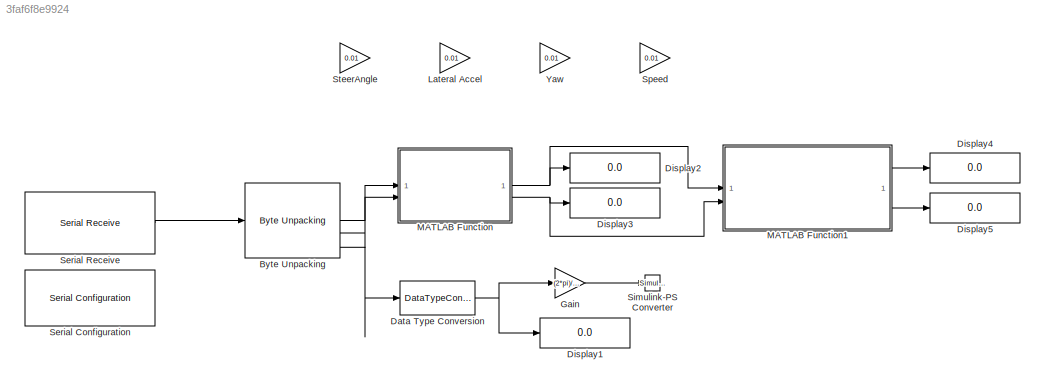
MODEL slx_3faf6f8e9924
KIND model
CONFIG AbsTol = auto
CONFIG EnableMultiTasking = off
CONFIG FixedStep = auto
CONFIG MaxStep = auto
CONFIG MinStep = auto
CONFIG RelTol = 1e-3
CONFIG SampleTimeConstraint = Unconstrained
CONFIG SolverName = VariableStepAuto
CONFIG StartTime = 0.0
CONFIG StopTime = 10.0
BLOCK [Reference] Byte Unpacking  REF=slrealtimeutilitieslib/Byte Unpacking
  SourceBlock = slrealtimeutilitieslib/Byte Unpacking
  SourceType = slreraltimebytepacking
BLOCK [DataTypeConversion] Data Type Conversion
  LockScale = on
  OutDataTypeStr = double
  RndMeth = Floor
  SaturateOnIntegerOverflow = off
BLOCK [Display] Display1
  Decimation = 1
BLOCK [Display] Display2
  Decimation = 1
BLOCK [Display] Display3
  Decimation = 1
BLOCK [Display] Display4
  Decimation = 1
BLOCK [Display] Display5
  Decimation = 1
BLOCK [Gain] Gain
  Gain = (2*pi)/60
BLOCK [Gain] Lateral Accel
  Gain = 0.01
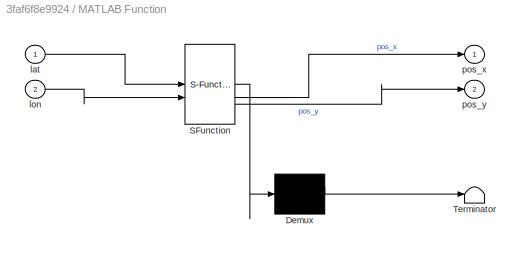
BLOCK [SubSystem] MATLAB Function
  ErrorFcn = Stateflow.Translate.translate
  PermitHierarchicalResolution = ExplicitOnly
  SFBlockType = MATLAB Function
  TreatAsAtomicUnit = on
BLOCK [Demux] MATLAB Function/ Demux 
  Outputs = 1
BLOCK [S-Function] MATLAB Function/ SFunction 
  EnableBusSupport = off
  FunctionName = sf_sfun
  PortCounts = [2 3]
  SFcnIsStateOwnerBlock = off
  SFunctionDeploymentMode = off
  Tag = Stateflow S-Function 2
BLOCK [Terminator] MATLAB Function/ Terminator 
BLOCK [Inport] MATLAB Function/lat
BLOCK [Inport] MATLAB Function/lon
  Port = 2
BLOCK [Outport] MATLAB Function/pos_x
BLOCK [Outport] MATLAB Function/pos_y
  Port = 2
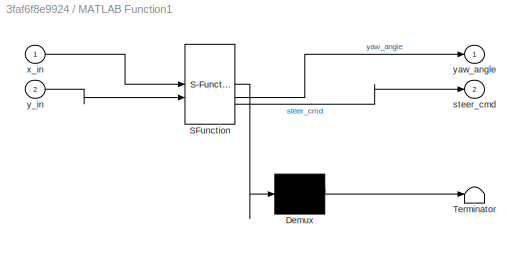
BLOCK [SubSystem] MATLAB Function1
  ErrorFcn = Stateflow.Translate.translate
  PermitHierarchicalResolution = ExplicitOnly
  SFBlockType = MATLAB Function
  TreatAsAtomicUnit = on
BLOCK [Demux] MATLAB Function1/ Demux 
  Outputs = 1
BLOCK [S-Function] MATLAB Function1/ SFunction 
  EnableBusSupport = off
  FunctionName = sf_sfun
  PortCounts = [2 3]
  SFcnIsStateOwnerBlock = off
  SFunctionDeploymentMode = off
  Tag = Stateflow S-Function 1
BLOCK [Terminator] MATLAB Function1/ Terminator 
BLOCK [Outport] MATLAB Function1/steer_cmd
  Port = 2
BLOCK [Inport] MATLAB Function1/x_in
BLOCK [Inport] MATLAB Function1/y_in
  Port = 2
BLOCK [Outport] MATLAB Function1/yaw_angle
BLOCK [Reference] Serial Configuration  REF=instrumentseriallib/Serial Configuration
  LibrarySourceBlock = instrumentlib/Serial Configuration
  Priority = -200000
  SourceBlock = instrumentseriallib/Serial Configuration
  SourceType = system.SerialConfiguration
BLOCK [Reference] Serial Receive  REF=instrumentseriallib/Serial Receive
  LibrarySourceBlock = instrumentlib/Serial Receive
  Priority = 1
  SourceBlock = instrumentseriallib/Serial Receive
  SourceType = system.SerialReceive
BLOCK [Reference] Simulink-PS Converter  REF=nesl_utility/Simulink-PS
Converter
  SourceBlock = nesl_utility/Simulink-PS\nConverter
  SourceType = Simulink-PS\nConverter
BLOCK [Gain] Speed
  Gain = 0.01
BLOCK [Gain] SteerAngle
  Gain = 0.01
BLOCK [Gain] Yaw
  Gain = 0.01
LINE Byte Unpacking:1 -> MATLAB Function:1
LINE Byte Unpacking:2 -> MATLAB Function:2
LINE Byte Unpacking:6 -> Data Type Conversion:1
NET Data Type Conversion:1 -> Display1:1, Gain:1
LINE Gain:1 -> Simulink-PS Converter:1
LINE MATLAB Function1:1 -> Display4:1
LINE MATLAB Function1:2 -> Display5:1
NET MATLAB Function:1 -> Display2:1, MATLAB Function1:1
NET MATLAB Function:2 -> Display3:1, MATLAB Function1:2
LINE Serial Receive:1 -> Byte Unpacking:1
note: NET lines group one-source signal fan-out (src -> all destinations, sorted); 1:1 wires keep LINE
CHART MATLAB Function states=1 transitions=1
  STATE_LABEL 'eML_blk_kernel()'
  STATE_LABEL 'SCRIPT:\nfunction [pos_x, pos_y] = gpsToLocal(lat, lon)\n    % 1. Set the Reference Origin (Matches your Python Script)\n    lat0 = 30.3527; \n    lon0 = 76.3608;\n    \n    % 2. Earth Radius (approximate)\n    R = 6371000; % meters\n\n    % 3. Calculate Differences in Degrees\n    dLat = lat - lat0;\n    dLon = lon - lon0;\n\n    % 4. Convert to Meters (Simple Equirectangular Projection)\n    % Latitude: 1 deg...<+155ch>'
CHART MATLAB Function1 states=1 transitions=1
  STATE_LABEL 'eML_blk_kernel()'
  STATE_LABEL 'SCRIPT:\nfunction [yaw_angle, steer_cmd] = computeSteering(x_in, y_in)\n    % --- FIX: CONVERT INPUTS TO DOUBLE IMMEDIATELY ---\n    x = double(x_in);\n    y = double(y_in);\n    % -------------------------------------------------\n\n    % Persistent variables remember the "Previous" position\n    persistent x_prev y_prev yaw_prev\n    if isempty(x_prev)\n        x_prev = 0;\n        y_prev = 0;\n        yaw_...<+947ch>'
CHART  states=0 transitions=0
CHART  states=0 transitions=0
